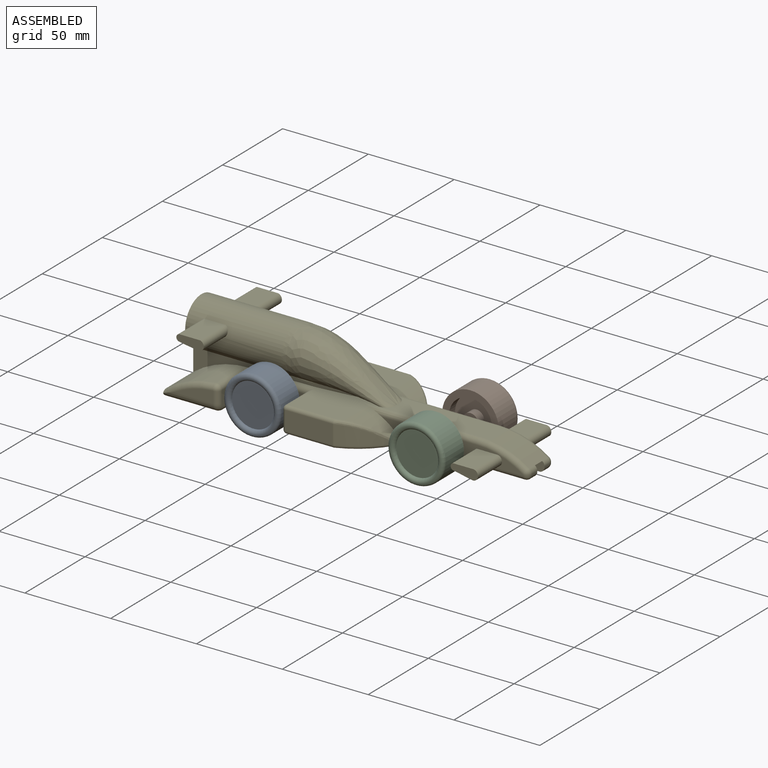
[diagram: assembled view]
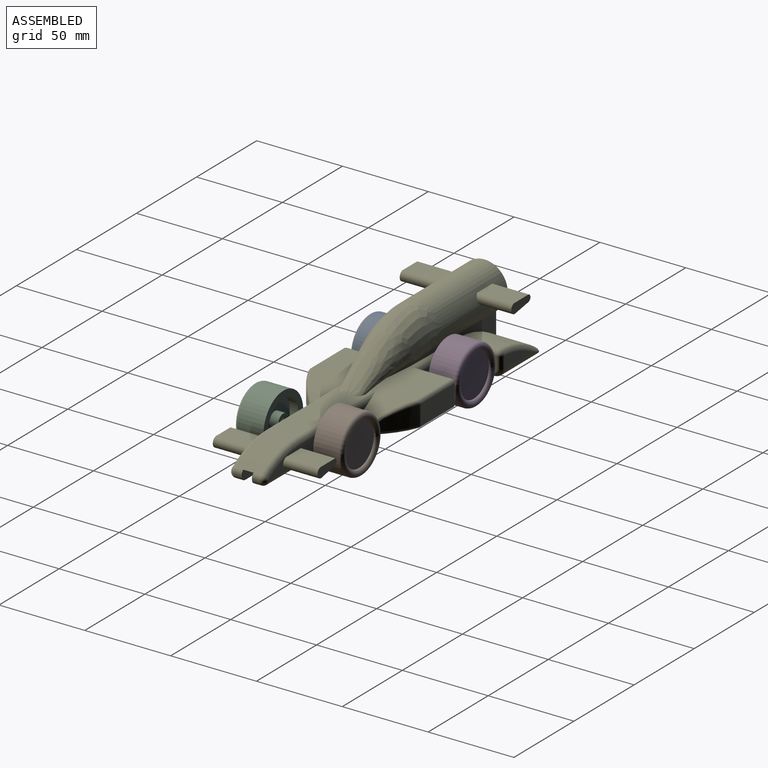
[diagram: assembled view, second angle]
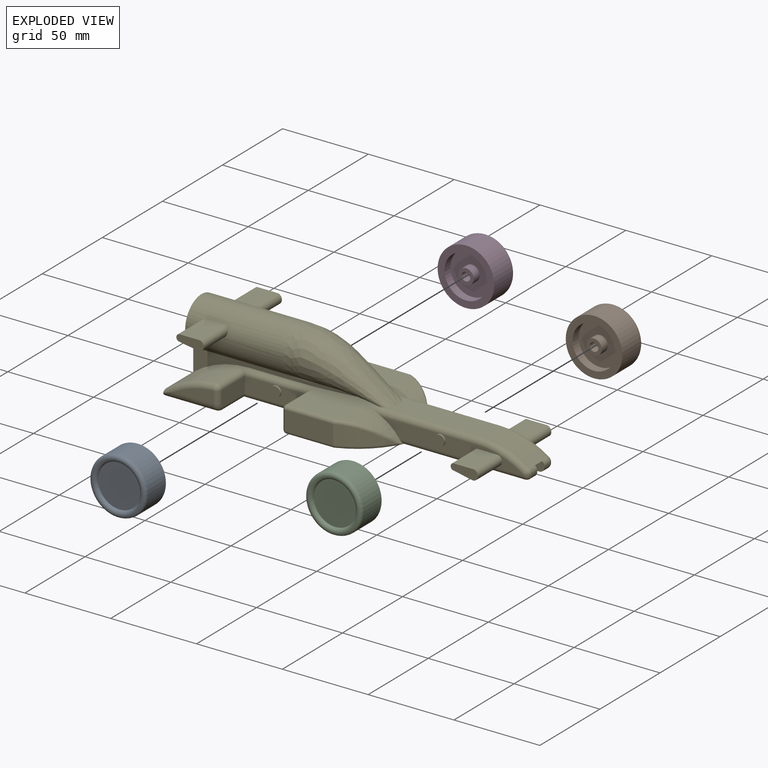
[diagram: exploded view]
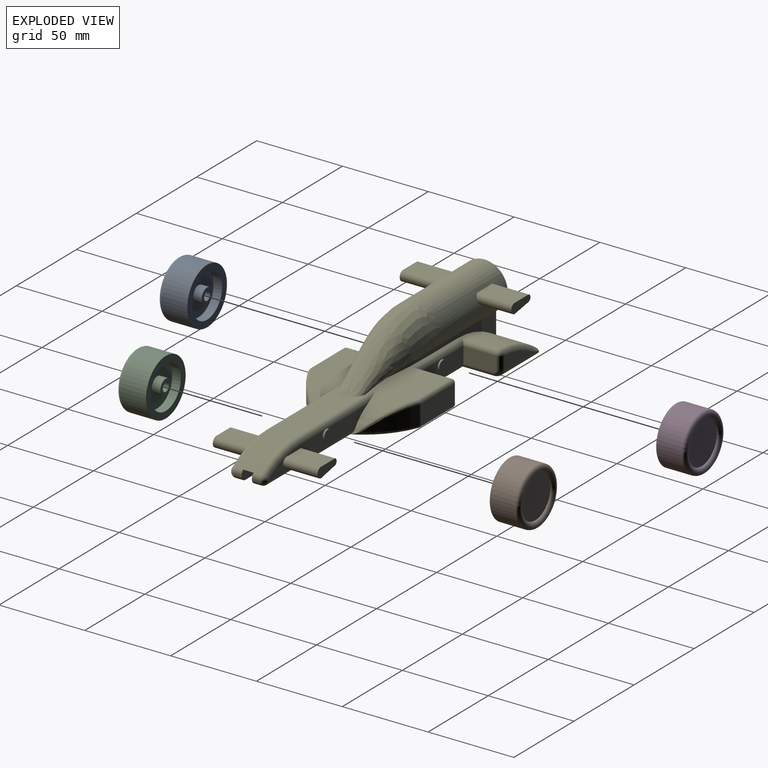
[diagram: exploded view, second angle]
ASSEMBLY  parts=5 mates=4
PART A: 10 faces, bbox 17x35.7x35.7 mm
  f0: plane 25x25mm, normal (1,0,0), area 490.9mm2, adj f1
  f1: torus R=14.5mm, axis (-1,0,0), area 572.4mm2, adj f0,f2
  f2: cylinder r=16.5mm len=33mm, axis (-1,0,0), area 1555.1mm2, adj f1,f3
  f3: plane 33x33mm, normal (-1,0,0), area 364.4mm2, adj f2,f4
  f4: cylinder r=12.5mm len=25mm, axis (-1,0,0), area 392.7mm2, adj f3,f5
  f5: plane 25x25mm, normal (-1,0,0), area 427.3mm2, adj f4,f6
  f6: cylinder r=4.5mm len=9mm, axis (-1,0,0), area 141.4mm2, adj f5,f7
  f7: plane 9x9mm, normal (-1,0,0), area 44mm2, adj f6,f8
  f8: cylinder r=2.5mm len=5mm, axis (-1,0,0), area 78.5mm2, adj f7,f9
  f9: plane 5x5mm, normal (-1,0,0), area 19.6mm2, adj f8
PART B: same geometry as A
PART C: same geometry as A
PART D: same geometry as A
PART E: 147 faces, bbox 202.8x72.5x44.7 mm
  f0: plane 194.81x27.5mm, normal (0,0,-1), area 1585.4mm2, adj f6,f18,f23,f37,f38,f47,f48,f52
  f1: plane 4.5x0.47mm, normal (1,0,0), area 2.1mm2, adj f38,f40,f41,f61
  f2: plane 82.5x9mm, normal (0,1,0), area 511.5mm2, adj f25,f26,f27,f28,f35,f37,f40,f43
  f3: plane 135.23x61mm, normal (0,0,1), area 2366.2mm2, adj f10,f12,f13,f14,f35,f36,f44,f45
  f4: cylinder r=47.9mm len=22.74mm, axis (0,0,-1), area 217.8mm2, adj f55,f57,f58,f60
  f5: plane 19x8.91mm, normal (1,0,0), area 168.5mm2, adj f7,f18,f19,f20,f24
  f6: plane 64.22x42.92mm, normal (-1,0,0), area 668.7mm2, adj f0,f10,f11,f14,f15,f22,f23,f61
  f7: plane 37.07x9mm, normal (0,1,0), area 305.3mm2, adj f5,f17,f20,f45,f46,f47,f73
  f8: plane 27.56x11mm, normal (0,1,0), area 303.2mm2, adj f51,f52,f56,f57
  f9: plane 22.85x6.91mm, normal (0,1,0), area 101.5mm2, adj f19,f22,f23
  f10: plane 56x13.19mm, normal (0,1,0), area 242.3mm2, adj f3,f6,f11,f12,f14
  f11: cylinder r=13.5mm len=56mm, axis (-1,0,0), area 3808.1mm2, adj f6,f10,f13,f30,f32,f33,f34,f85
  f12: bspline ~47.99x3.73mm, area 73.3mm2, adj f3,f10,f13
  f13: bspline ~58.41x27.5mm, area 1554.9mm2, adj f3,f11,f12,f87
  f14: cylinder r=54.24mm len=32.59mm, axis (0,1,0), area 725.3mm2, adj f3,f6,f10,f20,f22,f46
  f15: cylinder r=9.5mm len=52mm, axis (-1,0,0), area 3103.9mm2, adj f6,f16
  f16: plane 19x19mm, normal (-1,0,0), area 283.5mm2, adj f15
  f17: plane 20.17x11mm, normal (-1,0,0), area 220.1mm2, adj f7,f45,f47,f48,f50,f51
  f18: cylinder r=3mm len=20mm, axis (0,1,0), area 87.2mm2, adj f0,f5,f24,f47
  f19: cylinder r=3mm len=6.91mm, axis (0,0,1), area 32.6mm2, adj f5,f9,f21,f24
  f20: cylinder r=3mm len=22mm, axis (0,1,0), area 98.1mm2, adj f5,f7,f14,f21,f46
  f21: sphere r=3mm, area 14.7mm2, adj f19,f20,f22
  f22: torus R=51.24mm, axis (0,-1,0), area 143.1mm2, adj f6,f9,f14,f21,f23
  f23: cylinder r=5mm len=29.59mm, axis (-1,0,0), area 224mm2, adj f0,f6,f9,f22,f24
  f24: torus R=2mm, axis (1,0,0), area 28.9mm2, adj f5,f18,f19,f23
  f25: cylinder r=2mm len=20mm, axis (0,-1,0), area 113.9mm2, adj f2,f26,f28,f29
  f26: plane 20x11.25mm, normal (0,0,1), area 225.1mm2, adj f2,f25,f27,f29
  f27: cylinder r=3mm len=20mm, axis (0,-1,0), area 209.6mm2, adj f2,f26,f28,f29
  f28: plane 20x10.15mm, normal (-0.2,0,-0.98), area 207.2mm2, adj f2,f25,f27,f29
  f29: plane 15.94x6mm, normal (0,1,0), area 74.1mm2, adj f25,f26,f27,f28
  f30: cylinder r=3mm len=21.23mm, axis (0,1,0), area 168.6mm2, adj f11,f31,f32,f33
  f31: plane 16x5.86mm, normal (0,1,0), area 74.4mm2, adj f30,f32,f33,f34
  f32: plane 21.23x12.23mm, normal (0,0,1), area 259.6mm2, adj f11,f30,f31,f34
  f33: plane 19.54x11.55mm, normal (-0.16,0,-0.99), area 224mm2, adj f11,f30,f31,f34
  f34: cylinder r=2mm len=21.23mm, axis (0,1,0), area 114.4mm2, adj f11,f31,f32,f33
  f35: cylinder r=28.23mm len=24.76mm, axis (0,1,0), area 349.1mm2, adj f2,f3,f37,f44,f55,f58
  f36: cylinder r=50mm len=28.72mm, axis (0,1,0), area 458.2mm2, adj f3,f41,f43,f61,f62,f112,f114,f132
  f37: cylinder r=3mm len=72.07mm, axis (-1,0,0), area 334.9mm2, adj f0,f2,f35,f39,f55
  f38: cylinder r=3mm len=4.5mm, axis (0,1,0), area 21.2mm2, adj f0,f1,f39,f61
  f39: sphere r=3mm, area 9mm2, adj f37,f38,f40
  f40: cylinder r=3mm len=3mm, axis (0,0,1), area 2.2mm2, adj f1,f2,f39,f42
  f41: cylinder r=3mm len=4.5mm, axis (0,1,0), area 12.9mm2, adj f1,f36,f42,f61
  f42: sphere r=3mm, area 6.3mm2, adj f40,f41,f43
  f43: torus R=47mm, axis (0,1,0), area 141mm2, adj f2,f36,f42,f44
  f44: cylinder r=3mm len=68.16mm, axis (1,0,0), area 291.4mm2, adj f2,f3,f35,f43
  f45: cylinder r=3mm len=39.06mm, axis (1,0,0), area 178.4mm2, adj f3,f7,f17,f46,f50
  f46: torus R=51.24mm, axis (0,1,0), area 5.5mm2, adj f7,f14,f20,f45
  f47: cylinder r=3mm len=42.06mm, axis (-1,0,0), area 183.5mm2, adj f0,f7,f17,f18,f48
  f48: cylinder r=2mm len=23mm, axis (0,-1,0), area 67.8mm2, adj f0,f17,f47,f49
  f49: sphere r=2mm, area 8.6mm2, adj f48,f51,f52
  f50: cylinder r=2mm len=23mm, axis (0,1,0), area 67.8mm2, adj f3,f17,f45,f53
  f51: cylinder r=2mm len=11mm, axis (0,0,-1), area 34.6mm2, adj f8,f17,f49,f53
  f52: cylinder r=2mm len=27.56mm, axis (-1,0,0), area 86.6mm2, adj f0,f8,f49,f54
  f53: sphere r=2mm, area 8.6mm2, adj f50,f51,f56
  f54: sphere r=2mm, area 1.5mm2, adj f52,f55,f57
  f55: torus R=45.9mm, axis (0,0,1), area 104mm2, adj f0,f4,f35,f37,f54,f58
  f56: cylinder r=2mm len=27.56mm, axis (1,0,0), area 86.6mm2, adj f3,f8,f53,f59
  f57: cylinder r=2mm len=11mm, axis (0,0,-1), area 8.2mm2, adj f4,f8,f54,f59
  f58: bspline ~28.32x24.51mm, area 82.7mm2, adj f4,f35,f55,f60
  f59: sphere r=2mm, area 1.5mm2, adj f56,f57,f60
  f60: torus R=45.9mm, axis (0,0,1), area 1.5mm2, adj f3,f4,f58,f59
  f61: plane 197.81x6mm, normal (0,-1,0), area 1183.9mm2, adj f0,f1,f6,f36,f38,f41,f62
  f62: plane 196.43x6mm, normal (0,0,-1), area 1178.6mm2, adj f6,f36,f61,f132
  f63: plane 41.32x5mm, normal (0,1,0), area 206.6mm2, adj f0,f64,f66,f67
  f64: plane 17.5x5mm, normal (1,0,0), area 87.5mm2, adj f0,f63,f65,f67
  f65: plane 21.58x5mm, normal (0,-1,0), area 107.9mm2, adj f0,f64,f66,f67
  f66: cylinder r=40.9mm len=19.73mm, axis (0,0,-1), area 134.3mm2, adj f0,f63,f65,f67
  f67: plane 41.32x17.5mm, normal (0,0,-1), area 589mm2, adj f63,f64,f65,f66
  f68: plane 14.5x5mm, normal (1,0,0), area 72.5mm2, adj f0,f69,f71,f72
  f69: plane 19.59x5mm, normal (0,-1,0), area 97.9mm2, adj f0,f68,f70,f72
  f70: plane 14.5x5mm, normal (-1,0,0), area 72.5mm2, adj f0,f69,f71,f72
  f71: plane 19.59x5mm, normal (0,1,0), area 97.9mm2, adj f0,f68,f70,f72
  f72: plane 19.59x14.5mm, normal (0,0,-1), area 284mm2, adj f68,f69,f70,f71
  f73: cylinder r=3mm len=6mm, axis (0,-1,0), area 18.8mm2, adj f7,f74
  f74: plane 6x6mm, normal (0,1,0), area 28.3mm2, adj f73
  f75: cylinder r=3mm len=6mm, axis (0,-1,0), area 18.8mm2, adj f2,f76
  f76: plane 6x6mm, normal (0,1,0), area 28.3mm2, adj f75
  f77: plane 194.81x27.5mm, normal (0,0,-1), area 1585.4mm2, adj f6,f90,f95,f108,f109,f118,f119,f123
  f78: plane 4.5x0.47mm, normal (1,0,0), area 2.1mm2, adj f109,f111,f112,f132
  f79: plane 82.5x9mm, normal (0,-1,0), area 511.5mm2, adj f97,f98,f99,f100,f107,f108,f111,f114
  f80: cylinder r=47.9mm len=22.74mm, axis (0,0,-1), area 217.8mm2, adj f126,f128,f129,f131
  f81: plane 19x8.91mm, normal (1,0,0), area 168.5mm2, adj f82,f90,f91,f92,f96
  f82: plane 37.07x9mm, normal (0,-1,0), area 305.3mm2, adj f81,f89,f92,f116,f117,f118,f143
  f83: plane 27.56x11mm, normal (0,-1,0), area 303.2mm2, adj f122,f123,f127,f128
  f84: plane 22.85x6.91mm, normal (0,-1,0), area 101.5mm2, adj f91,f94,f95
  f85: plane 56x13.19mm, normal (0,-1,0), area 242.3mm2, adj f3,f6,f11,f86,f88
  f86: bspline ~47.99x3.73mm, area 73.3mm2, adj f3,f85,f87
  f87: bspline ~58.41x27.5mm, area 1554.9mm2, adj f3,f11,f13,f86
  f88: cylinder r=54.24mm len=32.59mm, axis (0,-1,0), area 725.3mm2, adj f3,f6,f85,f92,f94,f117
  f89: plane 20.17x11mm, normal (-1,0,0), area 220.1mm2, adj f82,f116,f118,f119,f121,f122
  f90: cylinder r=3mm len=20mm, axis (0,-1,0), area 87.2mm2, adj f77,f81,f96,f118
  f91: cylinder r=3mm len=6.91mm, axis (0,0,1), area 32.6mm2, adj f81,f84,f93,f96
  f92: cylinder r=3mm len=22mm, axis (0,-1,0), area 98.1mm2, adj f81,f82,f88,f93,f117
  f93: sphere r=3mm, area 14.7mm2, adj f91,f92,f94
  f94: torus R=51.24mm, axis (0,1,0), area 143.1mm2, adj f6,f84,f88,f93,f95
  f95: cylinder r=5mm len=29.59mm, axis (-1,0,0), area 224mm2, adj f6,f77,f84,f94,f96
  f96: torus R=2mm, axis (1,0,0), area 28.9mm2, adj f81,f90,f91,f95
  f97: cylinder r=2mm len=20mm, axis (0,1,0), area 113.9mm2, adj f79,f98,f100,f101
  f98: plane 20x11.25mm, normal (0,0,1), area 225.1mm2, adj f79,f97,f99,f101
  f99: cylinder r=3mm len=20mm, axis (0,1,0), area 209.6mm2, adj f79,f98,f100,f101
  f100: plane 20x10.15mm, normal (-0.2,0,-0.98), area 207.2mm2, adj f79,f97,f99,f101
  f101: plane 15.94x6mm, normal (0,-1,0), area 74.1mm2, adj f97,f98,f99,f100
  f102: cylinder r=3mm len=21.23mm, axis (0,-1,0), area 168.6mm2, adj f11,f103,f104,f105
  f103: plane 16x5.86mm, normal (0,-1,0), area 74.4mm2, adj f102,f104,f105,f106
  f104: plane 21.23x12.23mm, normal (0,0,1), area 259.6mm2, adj f11,f102,f103,f106
  f105: plane 19.54x11.55mm, normal (-0.16,0,-0.99), area 224mm2, adj f11,f102,f103,f106
  f106: cylinder r=2mm len=21.23mm, axis (0,-1,0), area 114.4mm2, adj f11,f103,f104,f105
  f107: cylinder r=28.23mm len=24.76mm, axis (0,-1,0), area 349.1mm2, adj f3,f79,f108,f115,f126,f129
  f108: cylinder r=3mm len=72.07mm, axis (-1,0,0), area 334.9mm2, adj f77,f79,f107,f110,f126
  f109: cylinder r=3mm len=4.5mm, axis (0,-1,0), area 21.2mm2, adj f77,f78,f110,f132
  f110: sphere r=3mm, area 14.1mm2, adj f108,f109,f111
  f111: cylinder r=3mm len=3mm, axis (0,0,1), area 2.2mm2, adj f78,f79,f110,f113
  f112: cylinder r=3mm len=4.5mm, axis (0,-1,0), area 12.9mm2, adj f36,f78,f113,f132
  f113: sphere r=3mm, area 8.6mm2, adj f111,f112,f114
  f114: torus R=47mm, axis (0,-1,0), area 141mm2, adj f36,f79,f113,f115
  f115: cylinder r=3mm len=68.16mm, axis (1,0,0), area 291.4mm2, adj f3,f79,f107,f114
  f116: cylinder r=3mm len=39.06mm, axis (1,0,0), area 178.4mm2, adj f3,f82,f89,f117,f121
  f117: torus R=51.24mm, axis (0,-1,0), area 5.5mm2, adj f82,f88,f92,f116
  f118: cylinder r=3mm len=42.06mm, axis (-1,0,0), area 183.5mm2, adj f77,f82,f89,f90,f119
  f119: cylinder r=2mm len=23mm, axis (0,1,0), area 67.8mm2, adj f77,f89,f118,f120
  f120: sphere r=2mm, area 6.3mm2, adj f119,f122,f123
  f121: cylinder r=2mm len=23mm, axis (0,-1,0), area 67.8mm2, adj f3,f89,f116,f124
  f122: cylinder r=2mm len=11mm, axis (0,0,-1), area 34.6mm2, adj f83,f89,f120,f124
  f123: cylinder r=2mm len=27.56mm, axis (-1,0,0), area 86.6mm2, adj f77,f83,f120,f125
  f124: sphere r=2mm, area 6.3mm2, adj f121,f122,f127
  f125: sphere r=2mm, area 1.5mm2, adj f123,f126,f128
  f126: torus R=45.9mm, axis (0,0,1), area 104mm2, adj f77,f80,f107,f108,f125,f129
  f127: cylinder r=2mm len=27.56mm, axis (1,0,0), area 86.6mm2, adj f3,f83,f124,f130
  f128: cylinder r=2mm len=11mm, axis (0,0,-1), area 8.2mm2, adj f80,f83,f125,f130
  f129: bspline ~28.32x24.51mm, area 82.7mm2, adj f80,f107,f126,f131
  f130: sphere r=2mm, area 1.5mm2, adj f127,f128,f131
  f131: torus R=45.9mm, axis (0,0,1), area 1.5mm2, adj f3,f80,f129,f130
  f132: plane 197.81x6mm, normal (0,1,0), area 1183.9mm2, adj f6,f36,f62,f77,f78,f109,f112
  f133: plane 41.32x5mm, normal (0,-1,0), area 206.6mm2, adj f77,f134,f136,f137
  f134: plane 17.5x5mm, normal (1,0,0), area 87.5mm2, adj f77,f133,f135,f137
  f135: plane 21.58x5mm, normal (0,1,0), area 107.9mm2, adj f77,f134,f136,f137
  f136: cylinder r=40.9mm len=19.73mm, axis (0,0,-1), area 134.3mm2, adj f77,f133,f135,f137
  f137: plane 41.32x17.5mm, normal (0,0,-1), area 589mm2, adj f133,f134,f135,f136
  f138: plane 14.5x5mm, normal (1,0,0), area 72.5mm2, adj f77,f139,f141,f142
  f139: plane 19.59x5mm, normal (0,1,0), area 97.9mm2, adj f77,f138,f140,f142
  f140: plane 14.5x5mm, normal (-1,0,0), area 72.5mm2, adj f77,f139,f141,f142
  f141: plane 19.59x5mm, normal (0,-1,0), area 97.9mm2, adj f77,f138,f140,f142
  f142: plane 19.59x14.5mm, normal (0,0,-1), area 284mm2, adj f138,f139,f140,f141
  f143: cylinder r=3mm len=6mm, axis (0,1,0), area 18.8mm2, adj f82,f144
  f144: plane 6x6mm, normal (0,-1,0), area 28.3mm2, adj f143
  f145: cylinder r=3mm len=6mm, axis (0,1,0), area 18.8mm2, adj f79,f146
  f146: plane 6x6mm, normal (0,-1,0), area 28.3mm2, adj f145
PLACE A rot(axis=(-0.58,0.58,-0.58),120deg) t=(-8.18,6.88,1.18)mm
PLACE B rot(axis=(0,0,1),90deg) t=(87.46,55.88,1.18)mm
PLACE C rot(axis=(-0.58,0.58,-0.58),120deg) t=(87.46,6.88,1.18)mm
PLACE D rot(axis=(0,0,1),90deg) t=(-8.18,55.88,1.18)mm
PLACE E t=(-59.18,31.38,-7.82)mm fixed
MATE revolute B.f1 <-> E.f75  axis (0,-1,0) through (87.46,45.88,1.18)mm
MATE revolute D.f1 <-> E.f143  axis (0,-1,0) through (-8.18,45.88,1.18)mm
MATE revolute C.f1 <-> E.f145  axis (0,1,0) through (87.46,16.88,1.18)mm
MATE revolute A.f1 <-> E.f73  axis (0,1,0) through (-8.18,16.88,1.18)mm
